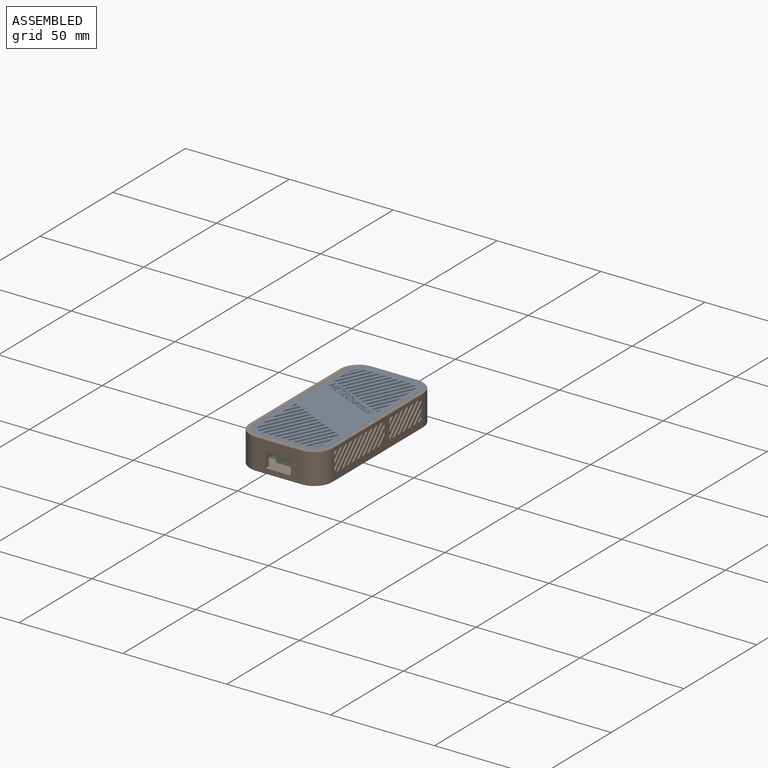
[diagram: assembled view]
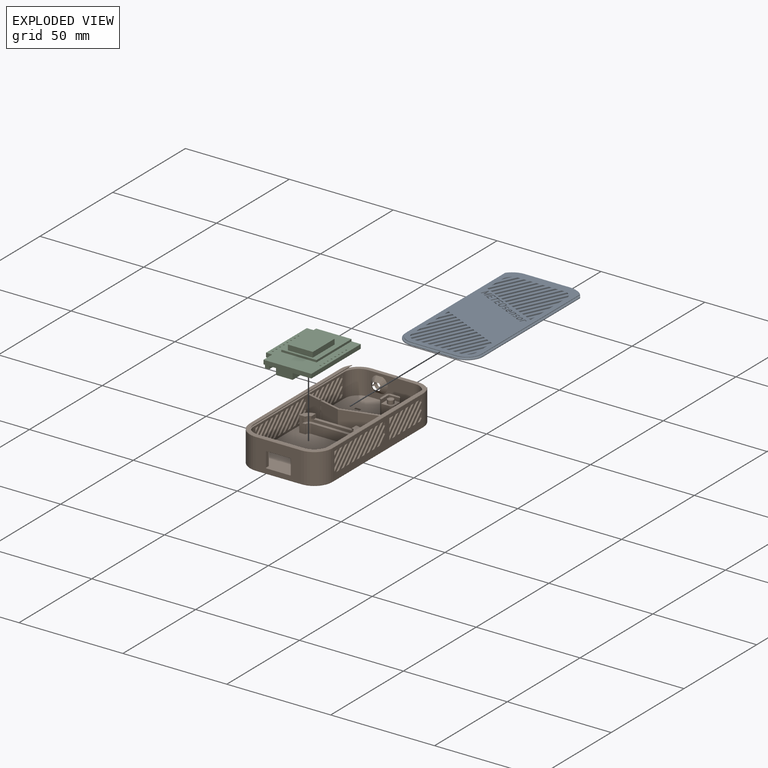
[diagram: exploded view]
GUIDED TOUR — MATED ASSEMBLY (Onshape document 24ece129b3e3b0dc4cd4cc12, AutoMate assembly 24ece129b3e3b0dc4cd4cc12_87bf58367a5d155fbc04921b_7ace9657f0227f6331e852cc_default)

This assembly has 3 components, labeled P0..P2 below (a component is one placed occurrence of a part; the same part can appear more than once), held together by 2 mates. A mate is a constraint between two components; its type names the relative motion it leaves free:
  FASTENED — locks the two components together rigidly (no relative motion),
  SLIDER — leaves translation along the listed axis free.
Axis/direction vectors are unit vectors and 'through' points are millimeter coordinates, both in the assembly's world frame.

MATES
  1. FASTENED "Fastened 1": P2 <-> P1, direction (1.000, 0.000, 0.000) through (7.92, -144.93, -26.69) mm
  2. SLIDER "Slider 1": P0 <-> P1, axis (0.000, 1.000, 0.000) through (26.52, -173.93, -19.39) mm

ASSEMBLY ORDER
  1. P1 — the base component [order verified]
  2. P2 [order verified]
  3. P0 [order verified]
Order-tag legend:
  [order verified] — this step's position reverses a verified removal order: the component was checked to insert without passing through the ones already placed.

Of the 3 components, 1 carries the full construction recipe — the FeatureScript program that regenerates the part's solid from scratch; the rest are supplied as boundary geometry only.
Each toured component is shown spotlighted twice — in the assembled view, then in the exploded view, where a leader line traces a displaced component back to its assembled socket (saturated green if recipe-attached, orange if geometry-only; every other component desaturated gray) — followed by its recipe or geometry summary and the mates that hold it.
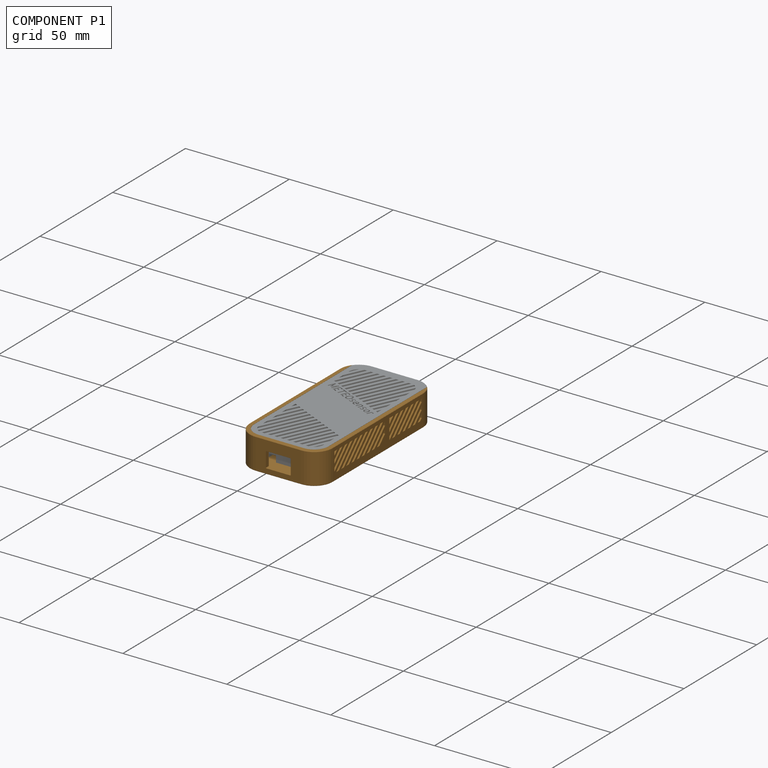
[diagram: component P1 — assembled]
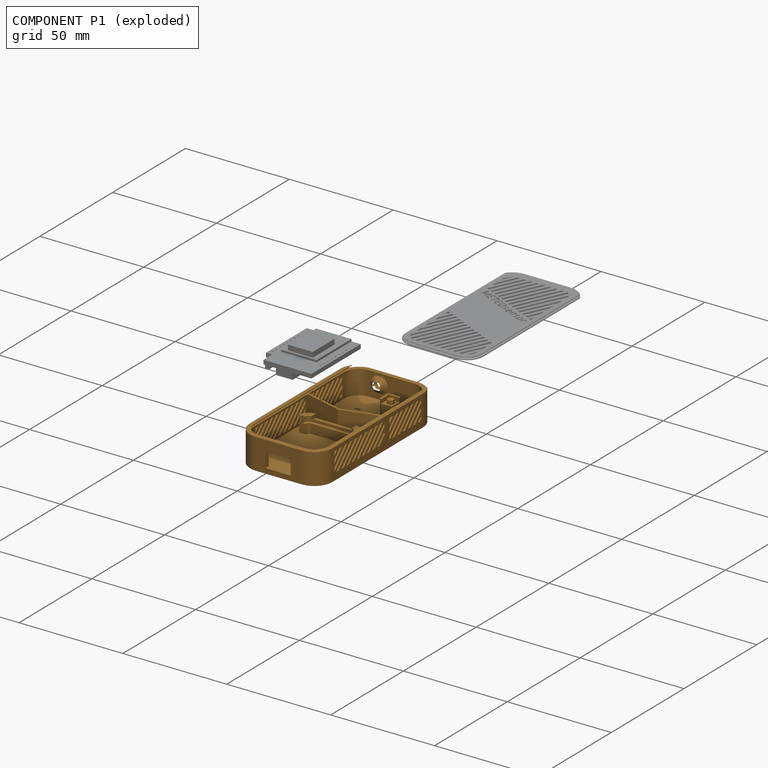
[diagram: component P1 — exploded]
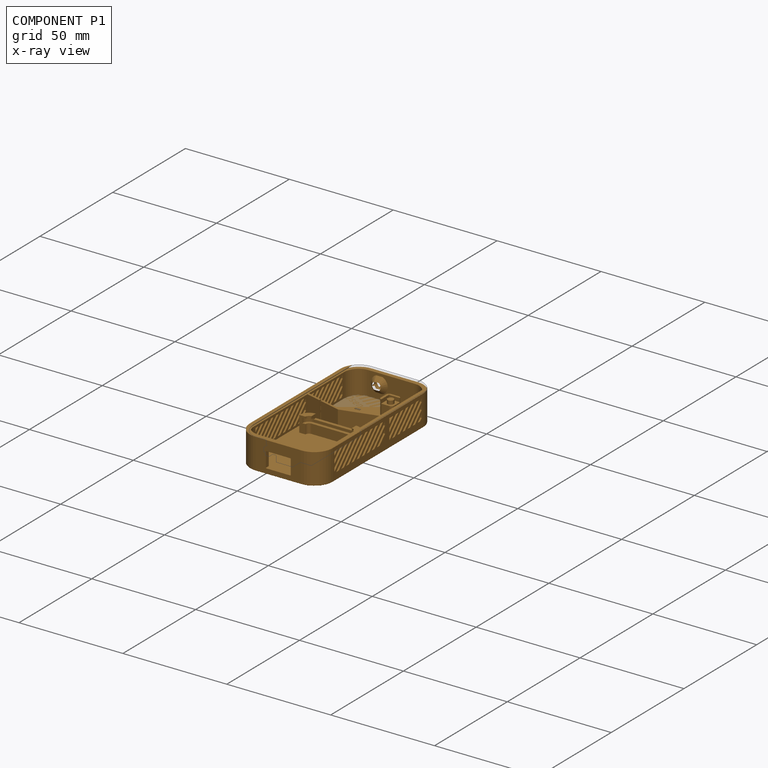
[diagram: component P1 — x-ray view]
COMPONENT P1 — geometry summary (no construction recipe available for this part):
  bounding box: 80.2 x 40.2 x 15.2 mm
  B-rep topology: 1 solid, 336 faces, 1908 edges
  volume: 13182 mm^3 (27% of its bounding box)
Held by: FASTENED mate "Fastened 1" to P2; SLIDER mate "Slider 1" to P0.
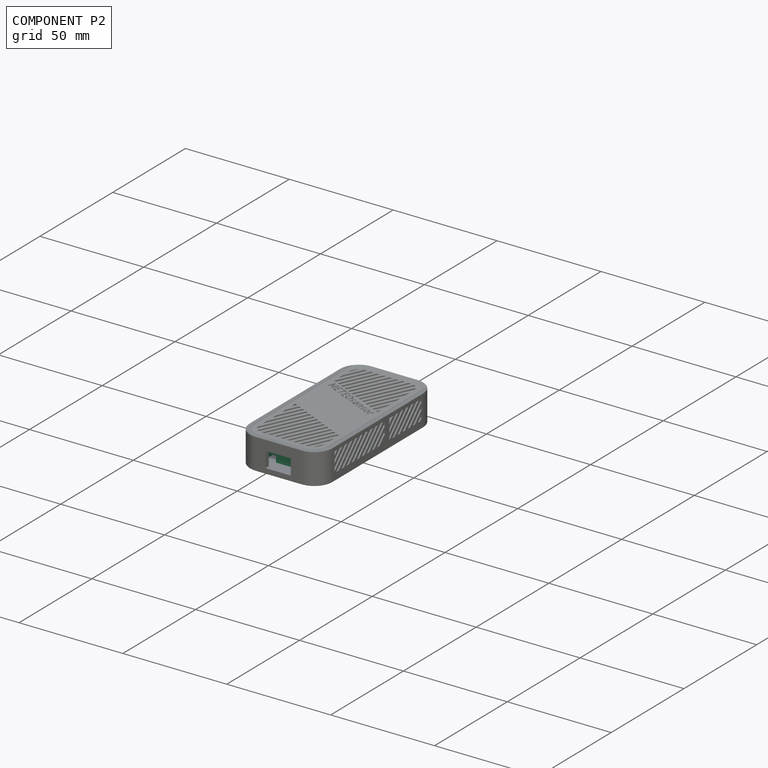
[diagram: component P2 — assembled]
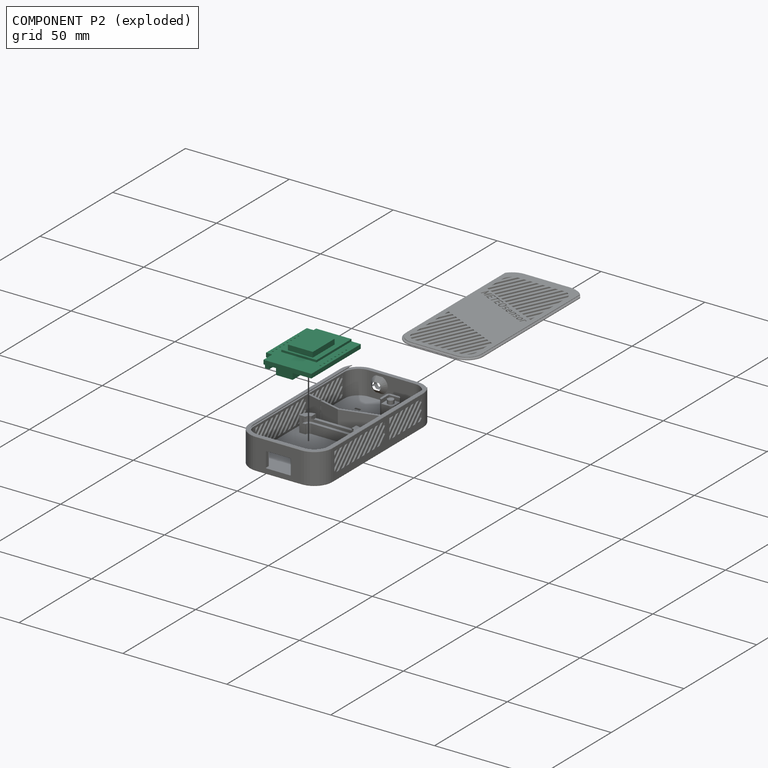
[diagram: component P2 — exploded]
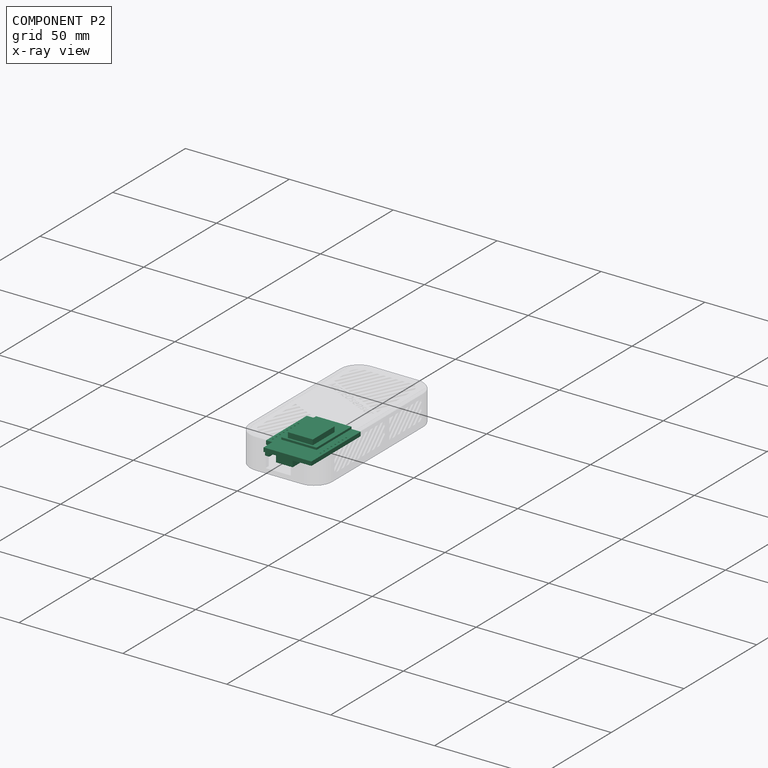
[diagram: component P2 — x-ray view]
COMPONENT P2 — recipe-attached (CADFS 00420295, mesh-verified: the recipe's output STEP matches this component's geometry to below the mesh-comparison resolution (tessellation chordal tolerance ~0.0655 mm)).
Held by: FASTENED mate "Fastened 1" to P1.
Construction recipe (FeatureScript — the CAD program that rebuilds this solid; sketch coordinates are in the units given by the * unit suffixes, e.g. mm):

FeatureScript 1511;
import(path : "onshape/std/geometry.fs", version : "1511.0");
import(path : "onshape/std/common.fs", version : "1511.0");
const mm = millimeter;
const VERTEX = EntityType.VERTEX;
const EDGE = EntityType.EDGE;
const FACE = EntityType.FACE;
const BODY = EntityType.BODY;
function v(x, y){return vector(x, y);}
function OD(order){return orderDisambiguation(order);}
function OSD(set){return originalSetDisambiguation(set);}
function TD(topology){return topologyDisambiguation(topology);}
function TDD(query){return trueDependencyDisambiguation(query);}
function sQuery(a, b, c) {return sketchEntityQuery(a, b, c);}

annotation { "Feature Type Name" : "Feature", "Feature Type Description" : "" }
export const myFeature = defineFeature(function(context is Context, id is Id, definition is map)
    precondition{}
    {
        {
            var Q0;
            Q0=qCreatedBy(makeId("Top.planeOp"),FACE);
            var sketch = newSketch(context, id + "F0", { "sketchPlane" : qUnion([Q0])});
            skLineSegment(sketch, "E0.bottom", {"start": v(-13, 17) * mm, "end": v(13, 17) * mm});
            skLineSegment(sketch, "E0.top", {"start": v(-10, -17) * mm, "end": v(13, -17) * mm});
            skLineSegment(sketch, "E0.left", {"start": v(-13, 17) * mm, "end": v(-13, -11) * mm});
            skLineSegment(sketch, "E0.right", {"start": v(13, 17) * mm, "end": v(13, -17) * mm});
            skLineSegment(sketch, "E1.top", {"start": v(-13, -11) * mm, "end": v(-10, -11) * mm});
            skLineSegment(sketch, "E1.right", {"start": v(-10, -17) * mm, "end": v(-10, -11) * mm});
            skSolve(sketch);
        }
        {
            var Q0;
            Q0=qSketchRegion(id+"F0",true);
            extrude(context, id + "F1", {"entities" : qUnion([Q0]), "depth" : 2 * mm});
        }
        {
            var Q0;
            Q0=makeQuery(id+"F1.opExtrude","CAP_FACE",FACE,{"disambiguationData":[OSD([sQuery(id+"F0.wireOp",EDGE,"E0.bottom"),sQuery(id+"F0.wireOp",EDGE,"E0.top"),sQuery(id+"F0.wireOp",EDGE,"E0.left"),sQuery(id+"F0.wireOp",EDGE,"E0.right"),sQuery(id+"F0.wireOp",EDGE,"E1.bottom"),sQuery(id+"F0.wireOp",EDGE,"E1.left")])],"isStart":false});
            var sketch = newSketch(context, id + "F2", { "sketchPlane" : qUnion([Q0])});
            skLineSegment(sketch, "E2.bottom", {"start": v(-8.5, 17) * mm, "end": v(8.5, 17) * mm});
            skLineSegment(sketch, "E2.top", {"start": v(-8.5, -7) * mm, "end": v(8.5, -7) * mm});
            skLineSegment(sketch, "E2.left", {"start": v(-8.5, 17) * mm, "end": v(-8.5, -7) * mm});
            skLineSegment(sketch, "E2.right", {"start": v(8.5, 17) * mm, "end": v(8.5, -7) * mm});
            skSolve(sketch);
        }
        {
            var Q0;
            Q0=qSketchRegion(id+"F2",true);
            extrude(context, id + "F3", {"entities" : qUnion([Q0]), "operationType" : NewBodyOperationType.ADD, "depth" : 1 * mm});
        }
        {
            var Q0;
            Q0=makeQuery(id+"F3.opExtrude","CAP_FACE",FACE,{"disambiguationData":[OSD([sQuery(id+"F2.wireOp",EDGE,"E2.bottom"),sQuery(id+"F2.wireOp",EDGE,"E2.top"),sQuery(id+"F2.wireOp",EDGE,"E2.left"),sQuery(id+"F2.wireOp",EDGE,"E2.right")])],"isStart":false});
            var sketch = newSketch(context, id + "F4", { "sketchPlane" : qUnion([Q0])});
            skLineSegment(sketch, "E3.bottom", {"start": v(-6, 9) * mm, "end": v(6, 9) * mm});
            skLineSegment(sketch, "E3.top", {"start": v(-6, -6) * mm, "end": v(6, -6) * mm});
            skLineSegment(sketch, "E3.left", {"start": v(-6, 9) * mm, "end": v(-6, -6) * mm});
            skLineSegment(sketch, "E3.right", {"start": v(6, 9) * mm, "end": v(6, -6) * mm});
            skSolve(sketch);
        }
        {
            var Q0;
            Q0=qSketchRegion(id+"F4",true);
            extrude(context, id + "F5", {"entities" : qUnion([Q0]), "operationType" : NewBodyOperationType.ADD, "depth" : 2.5 * mm});
        }
        {
            var Q0;
            Q0=makeQuery(id+"F1.opExtrude","CAP_FACE",FACE,{"disambiguationData":[OSD([sQuery(id+"F0.wireOp",EDGE,"E0.bottom"),sQuery(id+"F0.wireOp",EDGE,"E0.top"),sQuery(id+"F0.wireOp",EDGE,"E0.left"),sQuery(id+"F0.wireOp",EDGE,"E0.right"),sQuery(id+"F0.wireOp",EDGE,"E1.top"),sQuery(id+"F0.wireOp",EDGE,"E1.right")])],"isStart":true});
            var sketch = newSketch(context, id + "F6", { "sketchPlane" : qUnion([Q0])});
            skLineSegment(sketch, "E4.bottom", {"start": v(-4, 17) * mm, "end": v(4, 17) * mm});
            skLineSegment(sketch, "E4.top", {"start": v(-4, 11) * mm, "end": v(4, 11) * mm});
            skLineSegment(sketch, "E4.left", {"start": v(-4, 17) * mm, "end": v(-4, 11) * mm});
            skLineSegment(sketch, "E4.right", {"start": v(4, 17) * mm, "end": v(4, 11) * mm});
            skSolve(sketch);
        }
        {
            var Q0;
            Q0=qSketchRegion(id+"F6",true);
            extrude(context, id + "F7", {"entities" : qUnion([Q0]), "operationType" : NewBodyOperationType.ADD, "depth" : 3 * mm});
        }
        {
            var Q0;
            Q0=makeQuery(id+"F1.opExtrude","CAP_FACE",FACE,{"disambiguationData":[OSD([sQuery(id+"F0.wireOp",EDGE,"E0.bottom"),sQuery(id+"F0.wireOp",EDGE,"E0.top"),sQuery(id+"F0.wireOp",EDGE,"E0.left"),sQuery(id+"F0.wireOp",EDGE,"E0.right"),sQuery(id+"F0.wireOp",EDGE,"E1.top"),sQuery(id+"F0.wireOp",EDGE,"E1.right")])],"isStart":true});
            var sketch = newSketch(context, id + "F8", { "sketchPlane" : qUnion([Q0])});
            skLineSegment(sketch, "E5.bottom", {"start": v(-10, 16) * mm, "end": v(-8, 16) * mm});
            skLineSegment(sketch, "E5.top", {"start": v(-10, 11.5) * mm, "end": v(-8, 11.5) * mm});
            skLineSegment(sketch, "E5.left", {"start": v(-10, 16) * mm, "end": v(-10, 11.5) * mm});
            skLineSegment(sketch, "E5.right", {"start": v(-8, 16) * mm, "end": v(-8, 11.5) * mm});
            skSolve(sketch);
        }
        {
            var Q0;
            Q0=qSketchRegion(id+"F8",true);
            extrude(context, id + "F9", {"entities" : qUnion([Q0]), "operationType" : NewBodyOperationType.ADD, "depth" : 2 * mm});
        }
        {
            var Q0;
            Q0=makeQuery(id+"F9.boolean.opBoolean","MERGE",FACE,{"derivedFrom":[makeQuery(id+"F1.opExtrude","SWEPT_FACE",FACE,{"disambiguationData":[OSD([sQuery(id+"F0.wireOp",EDGE,"E1.right")])]}),makeQuery(id+"F9.opExtrude","SWEPT_FACE",FACE,{"disambiguationData":[OSD([sQuery(id+"F8.wireOp",EDGE,"E5.left")])]})]});
            var sketch = newSketch(context, id + "F10", { "sketchPlane" : qUnion([Q0])});
            skLineSegment(sketch, "E6.bottom", {"start": v(12.75, -0.5) * mm, "end": v(14.75, -0.5) * mm});
            skLineSegment(sketch, "E6.top", {"start": v(12.75, -1.5) * mm, "end": v(14.75, -1.5) * mm});
            skLineSegment(sketch, "E6.left", {"start": v(12.75, -0.5) * mm, "end": v(12.75, -1.5) * mm});
            skLineSegment(sketch, "E6.right", {"start": v(14.75, -0.5) * mm, "end": v(14.75, -1.5) * mm});
            skSolve(sketch);
        }
        {
            var Q0;
            Q0=qSketchRegion(id+"F10",true);
            extrude(context, id + "F11", {"entities" : qUnion([Q0]), "operationType" : NewBodyOperationType.ADD, "depth" : 1 * mm});
        }
        {
            var Q0;
            Q0=makeQuery(id+"F1.opExtrude","CAP_FACE",FACE,{"disambiguationData":[OSD([sQuery(id+"F0.wireOp",EDGE,"E0.bottom"),sQuery(id+"F0.wireOp",EDGE,"E0.top"),sQuery(id+"F0.wireOp",EDGE,"E0.left"),sQuery(id+"F0.wireOp",EDGE,"E0.right"),sQuery(id+"F0.wireOp",EDGE,"E1.top"),sQuery(id+"F0.wireOp",EDGE,"E1.right")])],"isStart":true});
            var sketch = newSketch(context, id + "F12", { "sketchPlane" : qUnion([Q0])});
            skLineSegment(sketch, "E7.bottom", {"start": v(-6, 2.2) * mm, "end": v(4.5, 2.2) * mm});
            skLineSegment(sketch, "E7.top", {"start": v(-6, -1.8) * mm, "end": v(4.5, -1.8) * mm});
            skLineSegment(sketch, "E7.left", {"start": v(-6, 2.2) * mm, "end": v(-6, -1.8) * mm});
            skLineSegment(sketch, "E7.right", {"start": v(4.5, 2.2) * mm, "end": v(4.5, -1.8) * mm});
            skSolve(sketch);
        }
        {
            var Q0;
            Q0=qSketchRegion(id+"F12",true);
            extrude(context, id + "F13", {"entities" : qUnion([Q0]), "operationType" : NewBodyOperationType.ADD, "depth" : 1.5 * mm});
        }
        {
            var Q0;
            Q0=makeQuery(id+"F1.opExtrude","CAP_FACE",FACE,{"disambiguationData":[OSD([sQuery(id+"F0.wireOp",EDGE,"E0.bottom"),sQuery(id+"F0.wireOp",EDGE,"E0.top"),sQuery(id+"F0.wireOp",EDGE,"E0.left"),sQuery(id+"F0.wireOp",EDGE,"E0.right"),sQuery(id+"F0.wireOp",EDGE,"E1.top"),sQuery(id+"F0.wireOp",EDGE,"E1.right")])],"isStart":true});
            var sketch = newSketch(context, id + "F14", { "sketchPlane" : qUnion([Q0])});
            skCircle(sketch, "E8", {"center": v(-11.5, -9) * mm, "radius": 0.38 * mm});
            skCircle(sketch, "E9.0.1.0", {"center": v(-11.5, -6.5) * mm, "radius": 0.38 * mm});
            skCircle(sketch, "E9.0.2.0", {"center": v(-11.5, -4) * mm, "radius": 0.38 * mm});
            skCircle(sketch, "E9.0.3.0", {"center": v(-11.5, -1.5) * mm, "radius": 0.38 * mm});
            skCircle(sketch, "E9.0.4.0", {"center": v(-11.5, 1) * mm, "radius": 0.38 * mm});
            skCircle(sketch, "E9.0.5.0", {"center": v(-11.5, 3.5) * mm, "radius": 0.38 * mm});
            skCircle(sketch, "E9.0.6.0", {"center": v(-11.5, 6) * mm, "radius": 0.38 * mm});
            skCircle(sketch, "E9.0.7.0", {"center": v(-11.5, 8.5) * mm, "radius": 0.38 * mm});
            skLineSegment(sketch, "E9.direction1", {"start": v(-11.5, -9) * mm, "end": v(11.5, -9) * mm, "construction": true});
            skLineSegment(sketch, "E9.direction2", {"start": v(-11.5, -9) * mm, "end": v(-11.5, -6.5) * mm, "construction": true});
            skCircle(sketch, "E10.0.1.0", {"center": v(11.5, -9) * mm, "radius": 0.38 * mm});
            skCircle(sketch, "E10.0.1.1", {"center": v(11.5, -6.5) * mm, "radius": 0.38 * mm});
            skCircle(sketch, "E10.0.1.2", {"center": v(11.5, -4) * mm, "radius": 0.38 * mm});
            skCircle(sketch, "E10.0.1.3", {"center": v(11.5, -1.5) * mm, "radius": 0.38 * mm});
            skCircle(sketch, "E10.0.1.4", {"center": v(11.5, 1) * mm, "radius": 0.38 * mm});
            skCircle(sketch, "E10.0.1.5", {"center": v(11.5, 3.5) * mm, "radius": 0.38 * mm});
            skCircle(sketch, "E10.0.1.6", {"center": v(11.5, 6) * mm, "radius": 0.38 * mm});
            skCircle(sketch, "E10.0.1.7", {"center": v(11.5, 8.5) * mm, "radius": 0.38 * mm});
            skSolve(sketch);
        }
        {
            var Q0;
            Q0=qSketchRegion(id+"F14",true);
            extrude(context, id + "F15", {"entities" : qUnion([Q0]), "operationType" : NewBodyOperationType.REMOVE, "oppositeDirection" : true, "depth" : 25 * mm});
        }
    });
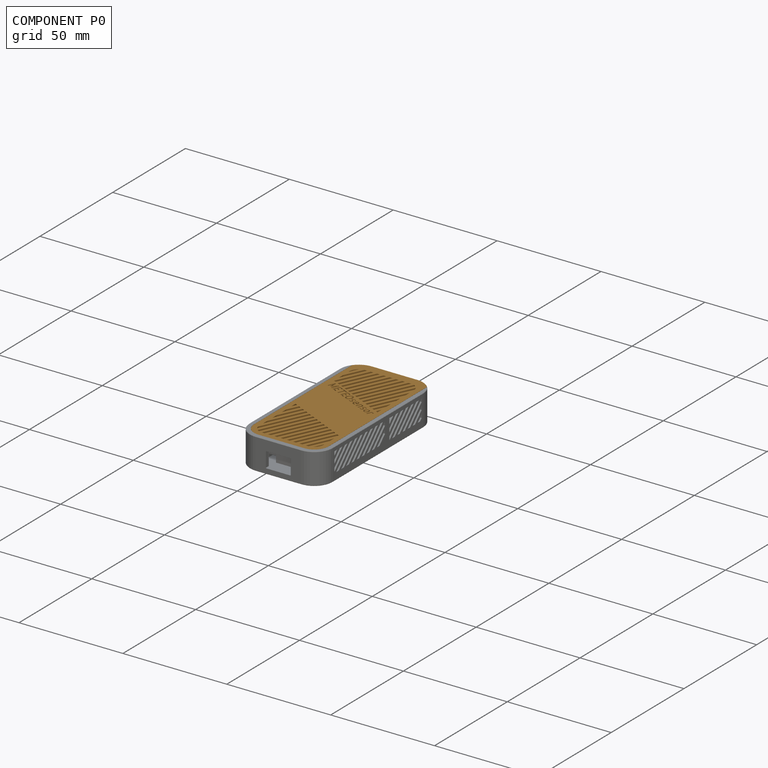
[diagram: component P0 — assembled]
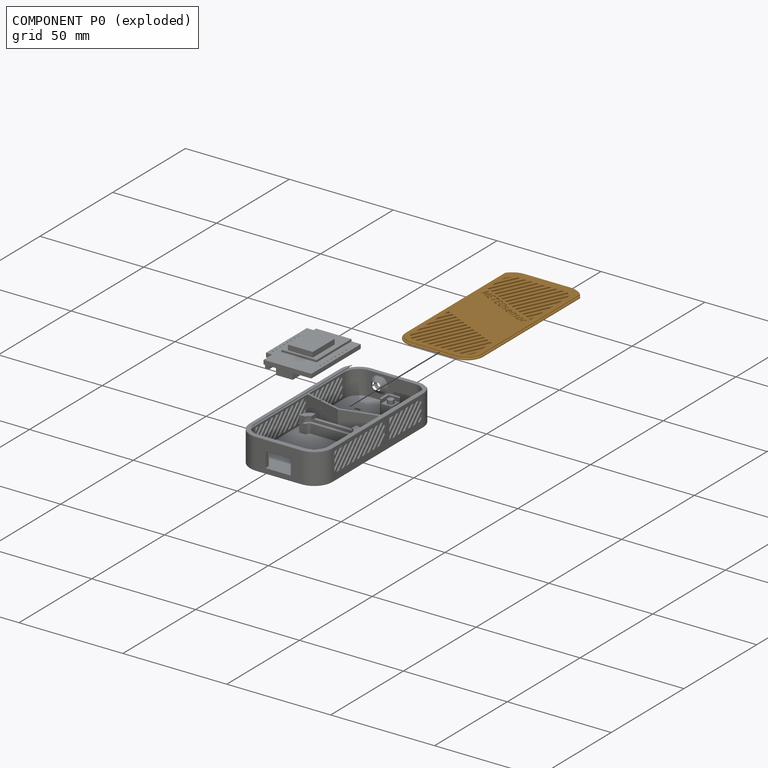
[diagram: component P0 — exploded]
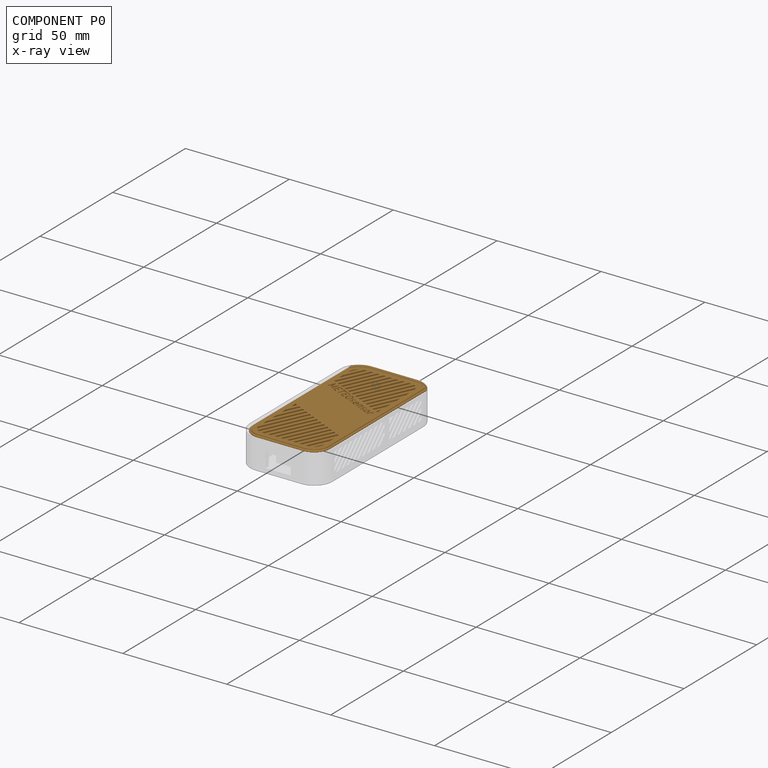
[diagram: component P0 — x-ray view]
COMPONENT P0 — geometry summary (no construction recipe available for this part):
  bounding box: 86.7 x 37.5 x 1.0 mm
  B-rep topology: 1 solid, 425 faces, 2514 edges
  volume: 2206 mm^3 (65% of its bounding box)
Held by: SLIDER mate "Slider 1" to P1.
PROVENANCE & LICENSES
Assembly (occurrences, transforms, mates, per-part STEP geometry): AutoMate dataset, Zenodo record 7776208, CC0.
Construction recipes: CADFS (HuggingFace VladPyatov/CADFS, CC-BY-4.0, layered over the ABC dataset), FeatureScript reconstruction programs keyed by ABC model id.
Join: ABC meta listings map ABC model id -> Onshape documentId; within a shared document, parts are matched by geometric signature (bounding-box dims + volume at 0.1% relative tolerance, exact B-rep face/solid counts).
Verification: 1 of this assembly's 3 components carries a recipe attachment, and every attachment is mesh-verified: the CADFS STEP and the AutoMate member STEP were compared as meshes in their shared local frame (symmetric sampled-point-to-mesh distance); worst across the 1 attachment: below the mesh-comparison resolution (tessellation chordal tolerance ~0.0655 mm) on a 44 mm part.
Renders: orthographic iso camera (az 35 / el 25); the floor grid conveys scale (grid pitch printed in each image; no ruler). In the exploded view each component is displaced by its stored offset vector: the offsets alone carry the explosion direction (mate normal/axis signs are not orientation cues and do not encode it), and separation distances are assigned per mate-chain, not proportionally to assembly-order depth.
